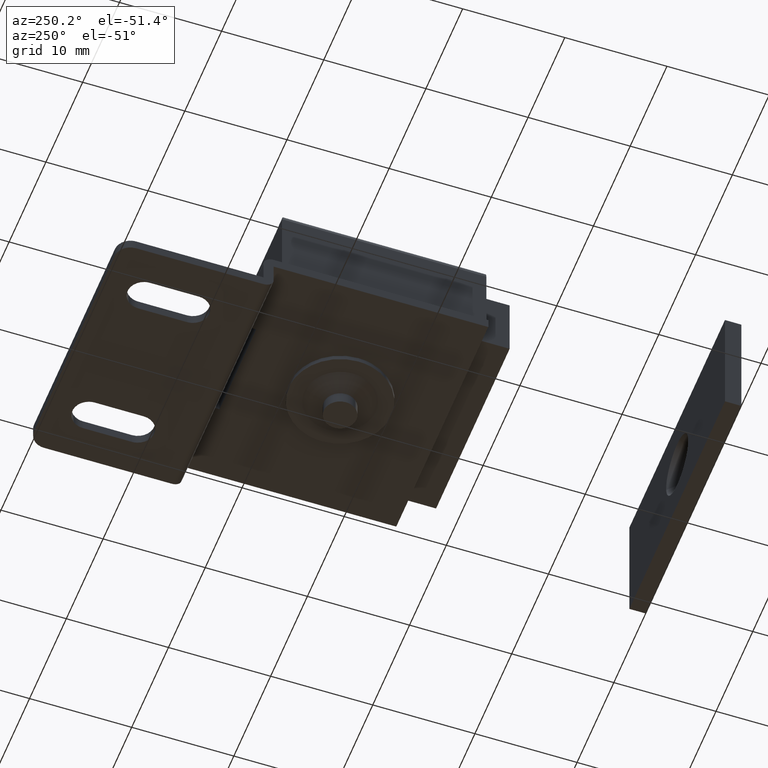
[diagram: clean part render]
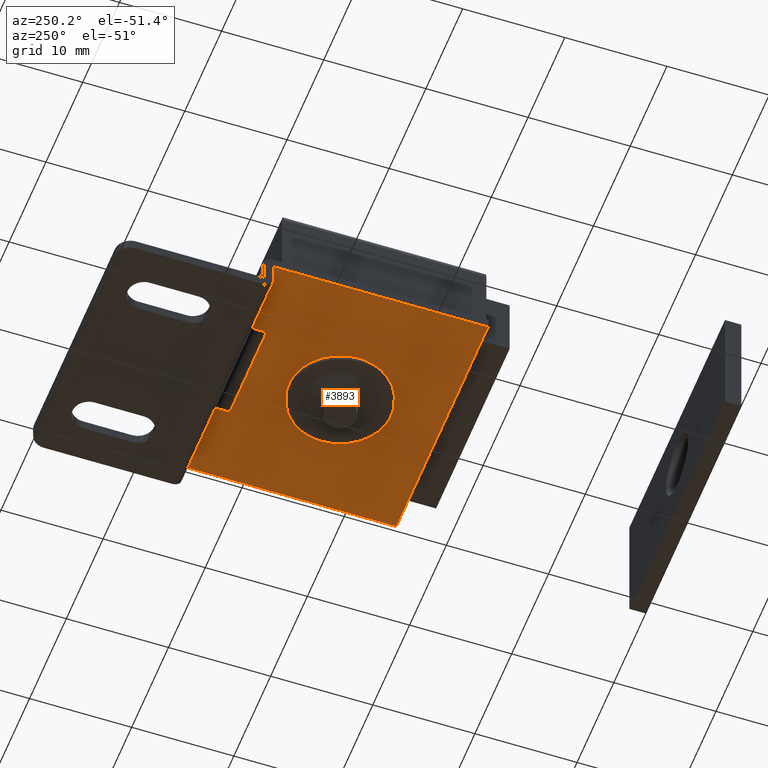
[diagram: same view with one face highlighted and labeled with its STEP entity id]
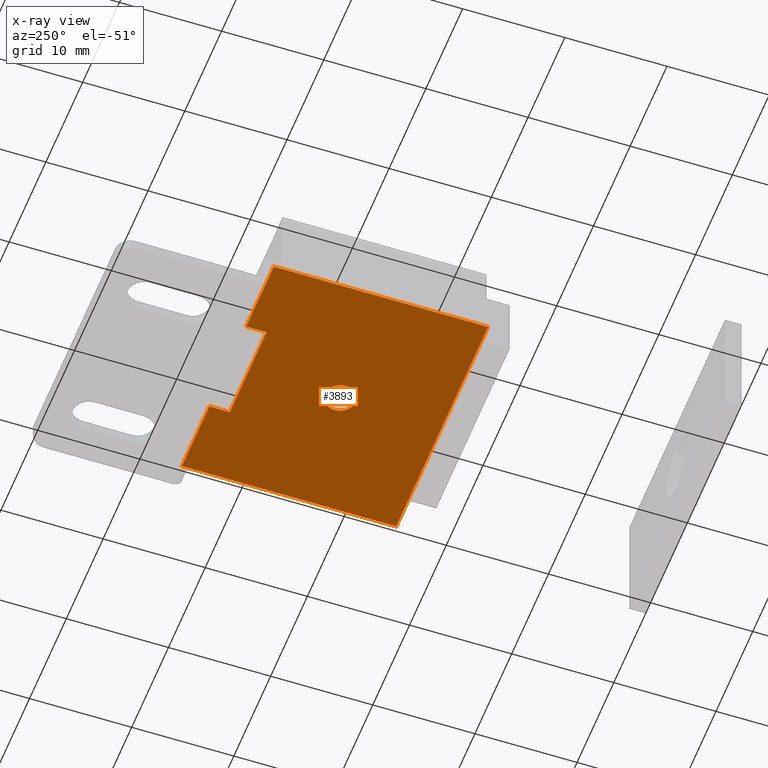
[diagram: x-ray of the same camera — body ghosted, the highlighted face saturated]
A machine part, auxiliary view. The second image highlights one B-rep face of the part: STEP entity #3893.
The next image is the same camera in x-ray: the body ghosted, the highlighted face saturated — about 0% of this face is hidden behind the body in this view.
In plain terms, the highlighted face is a freeform B-spline surface patch.
Its self-contained STEP definition (entity closure, byte-faithful):
#2958=CARTESIAN_POINT('',(1.500000000000000,-26.0,3.0));
#2959=VERTEX_POINT('',#2958);
#2960=CARTESIAN_POINT('',(0.117688643636623,-27.495376000596160,3.0));
#2961=VERTEX_POINT('',#2960);
#2962=CARTESIAN_POINT('',(1.500000000000000,-26.0,3.0));
#2963=CARTESIAN_POINT('',(1.500000000000000,-27.386585737445589,3.000000000000000));
#2964=CARTESIAN_POINT('',(0.117688643636623,-27.495376000596160,3.0));
#2972=(BOUNDED_CURVE()B_SPLINE_CURVE(2,(#2962,#2963,#2964),.UNSPECIFIED.,.F.,.U.)B_SPLINE_CURVE_WITH_KNOTS((3,3),(0.0,0.236331300627625),.UNSPECIFIED.)CURVE()GEOMETRIC_REPRESENTATION_ITEM()RATIONAL_B_SPLINE_CURVE((1.0,0.723120658611221,0.969723356161084))REPRESENTATION_ITEM(''));
#2973=EDGE_CURVE('',#2959,#2961,#2972,.T.);
#3014=CARTESIAN_POINT('',(-0.117688643636623,-24.504623999403830,3.0));
#3015=VERTEX_POINT('',#3014);
#3021=CARTESIAN_POINT('',(-0.117688643636623,-24.504623999403833,3.000000000000000));
#3022=CARTESIAN_POINT('',(-0.058935160534036,-24.500000000000000,3.000000000000001));
#3023=CARTESIAN_POINT('',(0.0,-24.500000000000000,3.0));
#3024=CARTESIAN_POINT('',(1.500000000000000,-24.500000000000004,3.0));
#3025=CARTESIAN_POINT('',(1.500000000000000,-26.0,3.0));
#3033=(BOUNDED_CURVE()B_SPLINE_CURVE(2,(#3021,#3022,#3023,#3024,#3025),.UNSPECIFIED.,.F.,.U.)B_SPLINE_CURVE_WITH_KNOTS((3,2,3),(0.736331300627625,0.750000000000000,1.0),.UNSPECIFIED.)CURVE()GEOMETRIC_REPRESENTATION_ITEM()RATIONAL_B_SPLINE_CURVE((0.969723356161084,0.983986122575326,1.0,0.707106781186548,1.0))REPRESENTATION_ITEM(''));
#3034=EDGE_CURVE('',#3015,#2959,#3033,.T.);
#3057=CARTESIAN_POINT('',(-1.500000000000000,-26.0,3.0));
#3058=VERTEX_POINT('',#3057);
#3059=CARTESIAN_POINT('',(0.117688643636623,-27.495376000596160,3.0));
#3060=CARTESIAN_POINT('',(0.058935160534036,-27.500000000000000,3.000000000000000));
#3061=CARTESIAN_POINT('',(0.0,-27.500000000000000,3.0));
#3062=CARTESIAN_POINT('',(-1.500000000000000,-27.500000000000004,3.0));
#3063=CARTESIAN_POINT('',(-1.500000000000000,-26.0,3.0));
#3071=(BOUNDED_CURVE()B_SPLINE_CURVE(2,(#3059,#3060,#3061,#3062,#3063),.UNSPECIFIED.,.F.,.U.)B_SPLINE_CURVE_WITH_KNOTS((3,2,3),(0.236331300627625,0.250000000000000,0.500000000000000),.UNSPECIFIED.)CURVE()GEOMETRIC_REPRESENTATION_ITEM()RATIONAL_B_SPLINE_CURVE((0.969723356161084,0.983986122575326,1.0,0.707106781186548,1.0))REPRESENTATION_ITEM(''));
#3072=EDGE_CURVE('',#2961,#3058,#3071,.T.);
#3074=CARTESIAN_POINT('',(-1.500000000000000,-26.0,3.0));
#3075=CARTESIAN_POINT('',(-1.500000000000000,-24.613414262554411,3.000000000000000));
#3076=CARTESIAN_POINT('',(-0.117688643636623,-24.504623999403833,3.000000000000000));
#3084=(BOUNDED_CURVE()B_SPLINE_CURVE(2,(#3074,#3075,#3076),.UNSPECIFIED.,.F.,.U.)B_SPLINE_CURVE_WITH_KNOTS((3,3),(0.500000000000000,0.736331300627625),.UNSPECIFIED.)CURVE()GEOMETRIC_REPRESENTATION_ITEM()RATIONAL_B_SPLINE_CURVE((1.0,0.723120658611221,0.969723356161084))REPRESENTATION_ITEM(''));
#3085=EDGE_CURVE('',#3058,#3015,#3084,.T.);
#3789=CARTESIAN_POINT('',(-12.500002000000000,-15.0,3.0));
#3790=VERTEX_POINT('',#3789);
#3797=CARTESIAN_POINT('',(12.500000000000000,-15.0,3.0));
#3798=VERTEX_POINT('',#3797);
#3804=CARTESIAN_POINT('',(5.0,-15.0,3.0));
#3805=VERTEX_POINT('',#3804);
#3806=CARTESIAN_POINT('',(12.500000000000000,-15.0,3.0));
#3807=CARTESIAN_POINT('',(5.0,-15.0,3.0));
#3808=QUASI_UNIFORM_CURVE('',1,(#3806,#3807),.UNSPECIFIED.,.F.,.U.);
#3809=EDGE_CURVE('',#3798,#3805,#3808,.T.);
#3825=CARTESIAN_POINT('',(-5.0,-15.0,3.0));
#3826=VERTEX_POINT('',#3825);
#3832=CARTESIAN_POINT('',(-5.0,-15.0,3.0));
#3833=CARTESIAN_POINT('',(-12.500002000000000,-15.0,3.0));
#3834=QUASI_UNIFORM_CURVE('',1,(#3832,#3833),.UNSPECIFIED.,.F.,.U.);
#3835=EDGE_CURVE('',#3826,#3790,#3834,.T.);
#3840=CARTESIAN_POINT('',(-13.748752051445150,-37.048949959297929,3.0));
#3841=CARTESIAN_POINT('',(13.748750721997450,-37.048949959297929,3.0));
#3842=CARTESIAN_POINT('',(-13.748752051445150,-13.951049477438181,3.0));
#3843=CARTESIAN_POINT('',(13.748750721997450,-13.951049477438181,3.0));
#3844=B_SPLINE_SURFACE_WITH_KNOTS('',1,1,((#3840,#3842),(#3841,#3843)),.UNSPECIFIED.,.F.,.F.,.U.,(2,2),(2,2),(0.0,27.497502773442601),(0.0,23.097900481859750),.UNSPECIFIED.);
#3845=CARTESIAN_POINT('',(5.0,-17.0,3.0));
#3846=VERTEX_POINT('',#3845);
#3847=CARTESIAN_POINT('',(-5.0,-17.0,3.0));
#3848=VERTEX_POINT('',#3847);
#3849=CARTESIAN_POINT('',(5.0,-17.0,3.0));
#3850=CARTESIAN_POINT('',(-5.0,-17.0,3.0));
#3851=QUASI_UNIFORM_CURVE('',1,(#3849,#3850),.UNSPECIFIED.,.F.,.U.);
#3852=EDGE_CURVE('',#3846,#3848,#3851,.T.);
#3853=ORIENTED_EDGE('',*,*,#3852,.F.);
#3854=CARTESIAN_POINT('',(5.0,-15.0,3.0));
#3855=CARTESIAN_POINT('',(5.0,-17.0,3.0));
#3856=QUASI_UNIFORM_CURVE('',1,(#3854,#3855),.UNSPECIFIED.,.F.,.U.);
#3857=EDGE_CURVE('',#3805,#3846,#3856,.T.);
#3858=ORIENTED_EDGE('',*,*,#3857,.F.);
#3859=ORIENTED_EDGE('',*,*,#3809,.F.);
#3860=CARTESIAN_POINT('',(12.500000000000000,-36.0,3.0));
#3861=VERTEX_POINT('',#3860);
#3862=CARTESIAN_POINT('',(12.500000000000000,-36.0,3.0));
#3863=CARTESIAN_POINT('',(12.500000000000000,-15.0,3.0));
#3864=QUASI_UNIFORM_CURVE('',1,(#3862,#3863),.UNSPECIFIED.,.F.,.U.);
#3865=EDGE_CURVE('',#3861,#3798,#3864,.T.);
#3866=ORIENTED_EDGE('',*,*,#3865,.F.);
#3867=CARTESIAN_POINT('',(-12.500002000000000,-36.0,3.0));
#3868=VERTEX_POINT('',#3867);
#3869=CARTESIAN_POINT('',(12.500000000000000,-36.0,3.0));
#3870=CARTESIAN_POINT('',(-12.500002000000000,-36.0,3.0));
#3871=QUASI_UNIFORM_CURVE('',1,(#3869,#3870),.UNSPECIFIED.,.F.,.U.);
#3872=EDGE_CURVE('',#3861,#3868,#3871,.T.);
#3873=ORIENTED_EDGE('',*,*,#3872,.T.);
#3874=CARTESIAN_POINT('',(-12.500002000000000,-36.0,3.0));
#3875=CARTESIAN_POINT('',(-12.500002000000000,-15.0,3.0));
#3876=QUASI_UNIFORM_CURVE('',1,(#3874,#3875),.UNSPECIFIED.,.F.,.U.);
#3877=EDGE_CURVE('',#3868,#3790,#3876,.T.);
#3878=ORIENTED_EDGE('',*,*,#3877,.T.);
#3879=ORIENTED_EDGE('',*,*,#3835,.F.);
#3880=CARTESIAN_POINT('',(-5.0,-17.0,3.0));
#3881=CARTESIAN_POINT('',(-5.0,-15.0,3.0));
#3882=QUASI_UNIFORM_CURVE('',1,(#3880,#3881),.UNSPECIFIED.,.F.,.U.);
#3883=EDGE_CURVE('',#3848,#3826,#3882,.T.);
#3884=ORIENTED_EDGE('',*,*,#3883,.F.);
#3885=EDGE_LOOP('',(#3853,#3858,#3859,#3866,#3873,#3878,#3879,#3884));
#3886=FACE_OUTER_BOUND('',#3885,.T.);
#3887=ORIENTED_EDGE('',*,*,#3085,.F.);
#3888=ORIENTED_EDGE('',*,*,#3072,.F.);
#3889=ORIENTED_EDGE('',*,*,#2973,.F.);
#3890=ORIENTED_EDGE('',*,*,#3034,.F.);
#3891=EDGE_LOOP('',(#3887,#3888,#3889,#3890));
#3892=FACE_BOUND('',#3891,.T.);
#3893=ADVANCED_FACE('',(#3886,#3892),#3844,.F.);